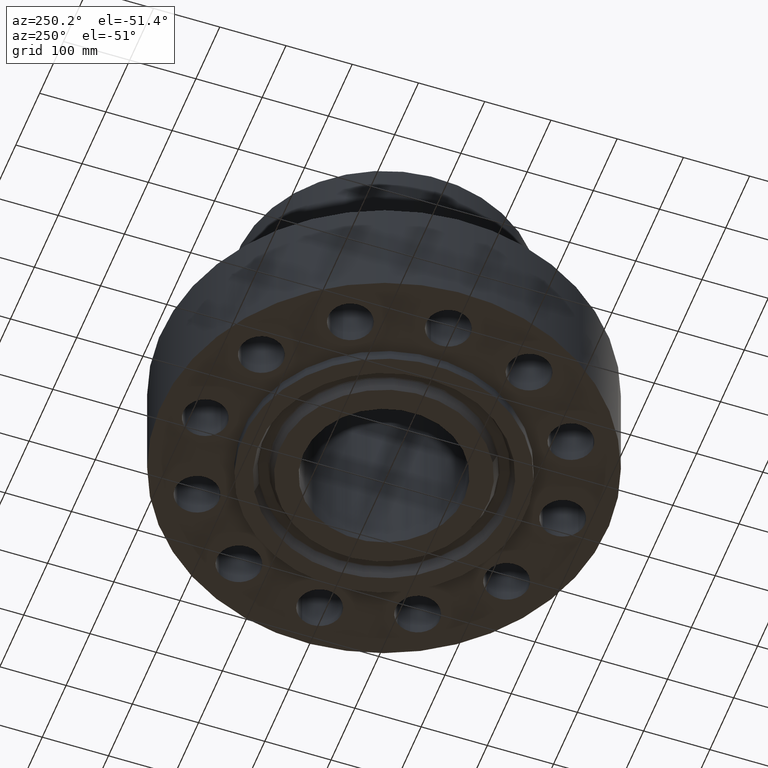
[diagram: clean part render]
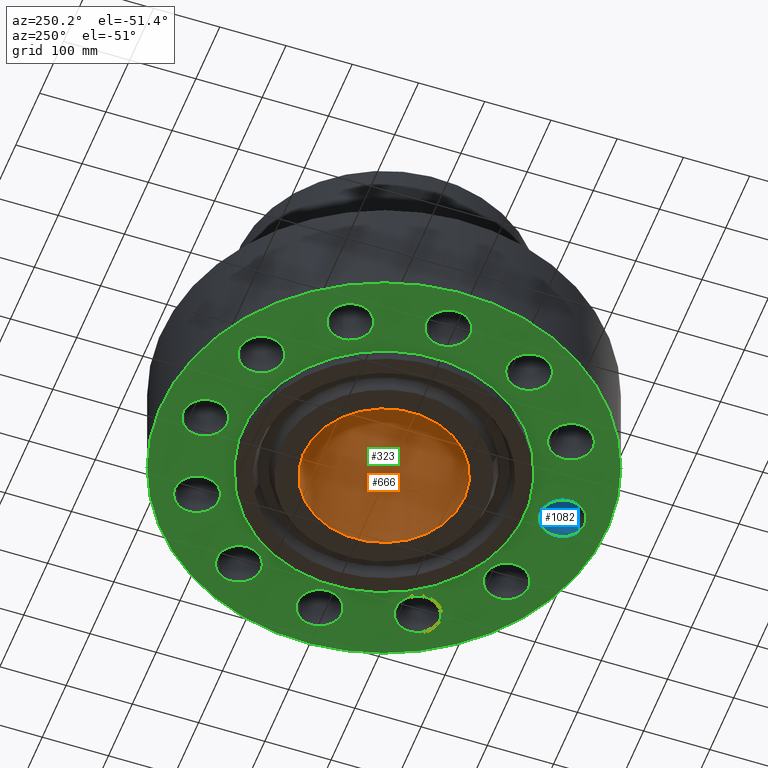
[diagram: same view with three faces highlighted in distinct colors, each labeled with its STEP entity id]
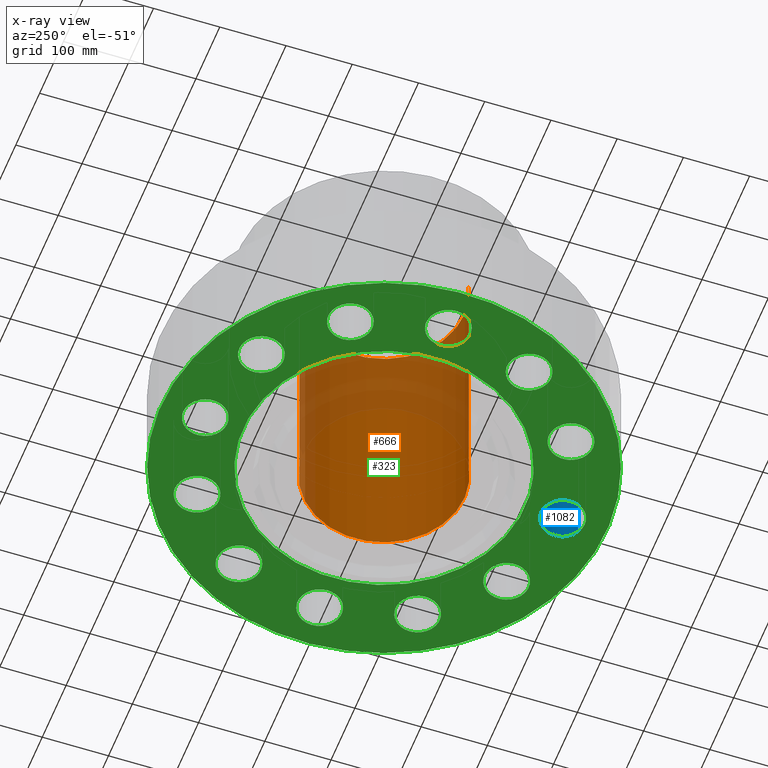
[diagram: x-ray of the same camera — body ghosted, the three highlighted faces saturated]
A machine part, auxiliary view with three faces highlighted in distinct colors.
The next image is the same camera in x-ray (body ghosted, the three faces saturated) — at least one of them is partly hidden behind the body in this view.
Their STEP definitions:

[orange] entity #666 — the highlighted cylindrical surface (partial cylindrical patch) has radius 121.412 mm, axis along (0, 0, -1).
#628=AXIS2_PLACEMENT_3D('Circle Axis2P3D',#626,#627,$) ;
#639=AXIS2_PLACEMENT_3D('Cylinder Axis2P3D',#636,#637,#638) ;
#650=AXIS2_PLACEMENT_3D('Circle Axis2P3D',#648,#649,$) ;
#621=CARTESIAN_POINT('Vertex',(-2.29165407454,-4.19484464585,15.7500000001)) ;
#623=CARTESIAN_POINT('Vertex',(2.29165407454,4.19484464585,15.7500000001)) ;
#626=CARTESIAN_POINT('Axis2P3D Location',(0.,0.,15.7500000001)) ;
#636=CARTESIAN_POINT('Axis2P3D Location',(0.,0.,7.53100000003)) ;
#641=CARTESIAN_POINT('Line Origine',(2.29165407454,4.19484464585,7.53100000003)) ;
#645=CARTESIAN_POINT('Vertex',(2.29165407454,4.19484464585,-0.688000000003)) ;
#648=CARTESIAN_POINT('Axis2P3D Location',(0.,0.,-0.688000000003)) ;
#652=CARTESIAN_POINT('Vertex',(-2.29165407454,-4.19484464585,-0.688000000003)) ;
#655=CARTESIAN_POINT('Line Origine',(-2.29165407454,-4.19484464585,7.53100000003)) ;
#627=DIRECTION('Axis2P3D Direction',(0.,0.,-0.0393700787402)) ;
#637=DIRECTION('Axis2P3D Direction',(0.,0.,-0.0393700787402)) ;
#638=DIRECTION('Axis2P3D XDirection',(-0.0188750212049,-0.0345504945626,0.)) ;
#642=DIRECTION('Vector Direction',(0.,0.,-0.0393700787402)) ;
#649=DIRECTION('Axis2P3D Direction',(0.,0.,-0.0393700787402)) ;
#656=DIRECTION('Vector Direction',(0.,0.,-0.0393700787402)) ;
#643=VECTOR('Line Direction',#642,0.0393700787402) ;
#657=VECTOR('Line Direction',#656,0.0393700787402) ;
#661=ORIENTED_EDGE('',*,*,#630,.F.) ;
#662=ORIENTED_EDGE('',*,*,#647,.T.) ;
#663=ORIENTED_EDGE('',*,*,#654,.T.) ;
#664=ORIENTED_EDGE('',*,*,#659,.F.) ;
#666=ADVANCED_FACE('PartBody',(#665),#640,.F.) ;
#629=CIRCLE('generated circle',#628,4.78000000002) ;
#651=CIRCLE('generated circle',#650,4.78000000002) ;
#640=CYLINDRICAL_SURFACE('generated cylinder',#639,4.78000000002) ;
#630=EDGE_CURVE('',#624,#622,#629,.T.) ;
#647=EDGE_CURVE('',#624,#646,#644,.T.) ;
#654=EDGE_CURVE('',#646,#653,#651,.T.) ;
#659=EDGE_CURVE('',#622,#653,#658,.T.) ;
#660=EDGE_LOOP('',(#661,#662,#663,#664)) ;
#665=FACE_OUTER_BOUND('',#660,.T.) ;
#644=LINE('Line',#641,#643) ;
#658=LINE('Line',#655,#657) ;
#622=VERTEX_POINT('',#621) ;
#624=VERTEX_POINT('',#623) ;
#646=VERTEX_POINT('',#645) ;
#653=VERTEX_POINT('',#652) ;

[blue] entity #1082 — the highlighted cylindrical surface (edge-blend (fillet) strip) has radius 33.274 mm, axis along (-0, 0, 1).
#172=AXIS2_PLACEMENT_3D('Circle Axis2P3D',#170,#171,$) ;
#1043=AXIS2_PLACEMENT_3D('Cylinder Axis2P3D',#1040,#1041,#1042) ;
#1073=AXIS2_PLACEMENT_3D('Circle Axis2P3D',#1071,#1072,$) ;
#165=CARTESIAN_POINT('Vertex',(0.628047455574,-11.7746331561,0.)) ;
#167=CARTESIAN_POINT('Vertex',(-0.628047455574,-9.47536684396,0.)) ;
#170=CARTESIAN_POINT('Axis2P3D Location',(-3.07715358006E-015,-10.625,0.)) ;
#1040=CARTESIAN_POINT('Axis2P3D Location',(-1.58733626436E-015,-10.625,0.00393700787402)) ;
#1045=CARTESIAN_POINT('Line Origine',(-0.628047455574,-9.47536684396,3.25000000001)) ;
#1049=CARTESIAN_POINT('Vertex',(-0.628047455574,-9.47536684396,6.50000000003)) ;
#1056=CARTESIAN_POINT('Vertex',(0.628047455574,-11.7746331561,6.50000000003)) ;
#1059=CARTESIAN_POINT('Line Origine',(0.628047455574,-11.7746331561,3.25000000001)) ;
#1071=CARTESIAN_POINT('Axis2P3D Location',(-1.58733626436E-015,-10.625,6.50000000003)) ;
#171=DIRECTION('Axis2P3D Direction',(0.,0.,-0.0393700787402)) ;
#1041=DIRECTION('Axis2P3D Direction',(-0.,0.,0.0393700787402)) ;
#1042=DIRECTION('Axis2P3D XDirection',(0.0188750212049,-0.0345504945626,0.)) ;
#1046=DIRECTION('Vector Direction',(0.,0.,0.0393700787402)) ;
#1060=DIRECTION('Vector Direction',(0.,0.,0.0393700787402)) ;
#1072=DIRECTION('Axis2P3D Direction',(-0.,0.,0.0393700787402)) ;
#1047=VECTOR('Line Direction',#1046,0.0393700787402) ;
#1061=VECTOR('Line Direction',#1060,0.0393700787402) ;
#1077=ORIENTED_EDGE('',*,*,#1063,.F.) ;
#1078=ORIENTED_EDGE('',*,*,#1075,.F.) ;
#1079=ORIENTED_EDGE('',*,*,#1051,.T.) ;
#1080=ORIENTED_EDGE('',*,*,#174,.T.) ;
#1082=ADVANCED_FACE('PartBody',(#1081),#1044,.F.) ;
#173=CIRCLE('generated circle',#172,1.31000000001) ;
#1074=CIRCLE('generated circle',#1073,1.31000000001) ;
#1044=CYLINDRICAL_SURFACE('generated cylinder',#1043,1.31000000001) ;
#174=EDGE_CURVE('',#168,#166,#173,.T.) ;
#1051=EDGE_CURVE('',#1050,#168,#1048,.F.) ;
#1063=EDGE_CURVE('',#1057,#166,#1062,.F.) ;
#1075=EDGE_CURVE('',#1050,#1057,#1074,.F.) ;
#1076=EDGE_LOOP('',(#1077,#1078,#1079,#1080)) ;
#1081=FACE_OUTER_BOUND('',#1076,.T.) ;
#1048=LINE('Line',#1045,#1047) ;
#1062=LINE('Line',#1059,#1061) ;
#166=VERTEX_POINT('',#165) ;
#168=VERTEX_POINT('',#167) ;
#1050=VERTEX_POINT('',#1049) ;
#1057=VERTEX_POINT('',#1056) ;

[green] entity #323 — the highlighted planar face has unit normal (0, 0, -1).
#65=AXIS2_PLACEMENT_3D('Circle Axis2P3D',#63,#64,$) ;
#78=AXIS2_PLACEMENT_3D('Plane Axis2P3D',#75,#76,#77) ;
#82=AXIS2_PLACEMENT_3D('Circle Axis2P3D',#80,#81,$) ;
#91=AXIS2_PLACEMENT_3D('Circle Axis2P3D',#89,#90,$) ;
#100=AXIS2_PLACEMENT_3D('Circle Axis2P3D',#98,#99,$) ;
#109=AXIS2_PLACEMENT_3D('Circle Axis2P3D',#107,#108,$) ;
#118=AXIS2_PLACEMENT_3D('Circle Axis2P3D',#116,#117,$) ;
#127=AXIS2_PLACEMENT_3D('Circle Axis2P3D',#125,#126,$) ;
#136=AXIS2_PLACEMENT_3D('Circle Axis2P3D',#134,#135,$) ;
#145=AXIS2_PLACEMENT_3D('Circle Axis2P3D',#143,#144,$) ;
#154=AXIS2_PLACEMENT_3D('Circle Axis2P3D',#152,#153,$) ;
#163=AXIS2_PLACEMENT_3D('Circle Axis2P3D',#161,#162,$) ;
#172=AXIS2_PLACEMENT_3D('Circle Axis2P3D',#170,#171,$) ;
#181=AXIS2_PLACEMENT_3D('Circle Axis2P3D',#179,#180,$) ;
#190=AXIS2_PLACEMENT_3D('Circle Axis2P3D',#188,#189,$) ;
#199=AXIS2_PLACEMENT_3D('Circle Axis2P3D',#197,#198,$) ;
#208=AXIS2_PLACEMENT_3D('Circle Axis2P3D',#206,#207,$) ;
#217=AXIS2_PLACEMENT_3D('Circle Axis2P3D',#215,#216,$) ;
#226=AXIS2_PLACEMENT_3D('Circle Axis2P3D',#224,#225,$) ;
#235=AXIS2_PLACEMENT_3D('Circle Axis2P3D',#233,#234,$) ;
#244=AXIS2_PLACEMENT_3D('Circle Axis2P3D',#242,#243,$) ;
#253=AXIS2_PLACEMENT_3D('Circle Axis2P3D',#251,#252,$) ;
#262=AXIS2_PLACEMENT_3D('Circle Axis2P3D',#260,#261,$) ;
#271=AXIS2_PLACEMENT_3D('Circle Axis2P3D',#269,#270,$) ;
#280=AXIS2_PLACEMENT_3D('Circle Axis2P3D',#278,#279,$) ;
#289=AXIS2_PLACEMENT_3D('Circle Axis2P3D',#287,#288,$) ;
#298=AXIS2_PLACEMENT_3D('Circle Axis2P3D',#296,#297,$) ;
#307=AXIS2_PLACEMENT_3D('Circle Axis2P3D',#305,#306,$) ;
#316=AXIS2_PLACEMENT_3D('Circle Axis2P3D',#314,#315,$) ;
#46=CARTESIAN_POINT('Vertex',(9.47536684396,-0.628047455574,2.2401153548E-016)) ;
#60=CARTESIAN_POINT('Vertex',(11.7746331561,0.628047455574,2.2401153548E-016)) ;
#63=CARTESIAN_POINT('Axis2P3D Location',(10.625,0.,0.)) ;
#75=CARTESIAN_POINT('Axis2P3D Location',(0.,6.51025591633,0.)) ;
#80=CARTESIAN_POINT('Axis2P3D Location',(0.,0.,0.)) ;
#84=CARTESIAN_POINT('Vertex',(-6.35238838653,-11.6279689451,1.1189649382E-015)) ;
#86=CARTESIAN_POINT('Vertex',(6.35238838653,11.6279689451,1.1189649382E-015)) ;
#89=CARTESIAN_POINT('Axis2P3D Location',(0.,0.,0.)) ;
#98=CARTESIAN_POINT('Axis2P3D Location',(10.625,0.,0.)) ;
#107=CARTESIAN_POINT('Axis2P3D Location',(0.,0.,0.)) ;
#111=CARTESIAN_POINT('Vertex',(4.01518888583,7.34975395586,0.)) ;
#113=CARTESIAN_POINT('Vertex',(-4.01518888583,-7.34975395586,0.)) ;
#116=CARTESIAN_POINT('Axis2P3D Location',(0.,0.,0.)) ;
#125=CARTESIAN_POINT('Axis2P3D Location',(9.20151991525,-5.31250000002,0.)) ;
#129=CARTESIAN_POINT('Vertex',(10.5111551612,-5.34341152675,0.)) ;
#131=CARTESIAN_POINT('Vertex',(7.89188466926,-5.28158847329,0.)) ;
#134=CARTESIAN_POINT('Axis2P3D Location',(9.20151991525,-5.31250000002,0.)) ;
#143=CARTESIAN_POINT('Axis2P3D Location',(5.31250000002,-9.20151991525,0.)) ;
#147=CARTESIAN_POINT('Vertex',(6.43122162937,-9.88310770566,0.)) ;
#149=CARTESIAN_POINT('Vertex',(4.19377837067,-8.51993212483,0.)) ;
#152=CARTESIAN_POINT('Axis2P3D Location',(5.31250000002,-9.20151991525,0.)) ;
#161=CARTESIAN_POINT('Axis2P3D Location',(-5.59482469102E-016,-10.625,0.)) ;
#165=CARTESIAN_POINT('Vertex',(0.628047455574,-11.7746331561,0.)) ;
#167=CARTESIAN_POINT('Vertex',(-0.628047455574,-9.47536684396,0.)) ;
#170=CARTESIAN_POINT('Axis2P3D Location',(-3.07715358006E-015,-10.625,0.)) ;
#179=CARTESIAN_POINT('Axis2P3D Location',(-5.31250000002,-9.20151991525,0.)) ;
#183=CARTESIAN_POINT('Vertex',(-5.34341152675,-10.5111551612,0.)) ;
#185=CARTESIAN_POINT('Vertex',(-5.28158847329,-7.89188466926,0.)) ;
#188=CARTESIAN_POINT('Axis2P3D Location',(-5.31250000002,-9.20151991525,0.)) ;
#197=CARTESIAN_POINT('Axis2P3D Location',(-9.20151991525,-5.31250000002,0.)) ;
#201=CARTESIAN_POINT('Vertex',(-9.88310770566,-6.43122162937,0.)) ;
#203=CARTESIAN_POINT('Vertex',(-8.51993212483,-4.19377837067,0.)) ;
#206=CARTESIAN_POINT('Axis2P3D Location',(-9.20151991525,-5.31250000002,0.)) ;
#215=CARTESIAN_POINT('Axis2P3D Location',(-10.625,-1.1189649382E-015,0.)) ;
#219=CARTESIAN_POINT('Vertex',(-11.7746331561,-0.628047455574,0.)) ;
#221=CARTESIAN_POINT('Vertex',(-9.47536684396,0.628047455574,0.)) ;
#224=CARTESIAN_POINT('Axis2P3D Location',(-10.625,-1.1189649382E-015,0.)) ;
#233=CARTESIAN_POINT('Axis2P3D Location',(-9.20151991525,5.31250000002,0.)) ;
#237=CARTESIAN_POINT('Vertex',(-10.5111551612,5.34341152675,0.)) ;
#239=CARTESIAN_POINT('Vertex',(-7.89188466926,5.28158847329,0.)) ;
#242=CARTESIAN_POINT('Axis2P3D Location',(-9.20151991525,5.31250000002,0.)) ;
#251=CARTESIAN_POINT('Axis2P3D Location',(-5.31250000002,9.20151991525,0.)) ;
#255=CARTESIAN_POINT('Vertex',(-6.43122162937,9.88310770566,0.)) ;
#257=CARTESIAN_POINT('Vertex',(-4.19377837067,8.51993212483,0.)) ;
#260=CARTESIAN_POINT('Axis2P3D Location',(-5.31250000002,9.20151991525,0.)) ;
#269=CARTESIAN_POINT('Axis2P3D Location',(-1.67844740731E-015,10.625,0.)) ;
#273=CARTESIAN_POINT('Vertex',(-0.628047455574,11.7746331561,0.)) ;
#275=CARTESIAN_POINT('Vertex',(0.628047455574,9.47536684396,0.)) ;
#278=CARTESIAN_POINT('Axis2P3D Location',(-1.53857679003E-015,10.625,0.)) ;
#287=CARTESIAN_POINT('Axis2P3D Location',(5.31250000002,9.20151991525,0.)) ;
#291=CARTESIAN_POINT('Vertex',(5.34341152675,10.5111551612,0.)) ;
#293=CARTESIAN_POINT('Vertex',(5.28158847329,7.89188466926,0.)) ;
#296=CARTESIAN_POINT('Axis2P3D Location',(5.31250000002,9.20151991525,0.)) ;
#305=CARTESIAN_POINT('Axis2P3D Location',(9.20151991525,5.31250000002,0.)) ;
#309=CARTESIAN_POINT('Vertex',(9.88310770566,6.43122162937,0.)) ;
#311=CARTESIAN_POINT('Vertex',(8.51993212483,4.19377837067,0.)) ;
#314=CARTESIAN_POINT('Axis2P3D Location',(9.20151991525,5.31250000002,0.)) ;
#64=DIRECTION('Axis2P3D Direction',(0.,-0.,0.0393700787402)) ;
#76=DIRECTION('Axis2P3D Direction',(0.,0.,-0.0393700787402)) ;
#77=DIRECTION('Axis2P3D XDirection',(0.0393700787402,0.,0.)) ;
#81=DIRECTION('Axis2P3D Direction',(0.,0.,-0.0393700787402)) ;
#90=DIRECTION('Axis2P3D Direction',(0.,0.,-0.0393700787402)) ;
#99=DIRECTION('Axis2P3D Direction',(0.,0.,-0.0393700787402)) ;
#108=DIRECTION('Axis2P3D Direction',(0.,0.,-0.0393700787402)) ;
#117=DIRECTION('Axis2P3D Direction',(0.,0.,-0.0393700787402)) ;
#126=DIRECTION('Axis2P3D Direction',(0.,0.,-0.0393700787402)) ;
#135=DIRECTION('Axis2P3D Direction',(0.,0.,-0.0393700787402)) ;
#144=DIRECTION('Axis2P3D Direction',(0.,0.,-0.0393700787402)) ;
#153=DIRECTION('Axis2P3D Direction',(0.,0.,-0.0393700787402)) ;
#162=DIRECTION('Axis2P3D Direction',(0.,0.,-0.0393700787402)) ;
#171=DIRECTION('Axis2P3D Direction',(0.,0.,-0.0393700787402)) ;
#180=DIRECTION('Axis2P3D Direction',(0.,0.,-0.0393700787402)) ;
#189=DIRECTION('Axis2P3D Direction',(0.,0.,-0.0393700787402)) ;
#198=DIRECTION('Axis2P3D Direction',(0.,0.,-0.0393700787402)) ;
#207=DIRECTION('Axis2P3D Direction',(0.,0.,-0.0393700787402)) ;
#216=DIRECTION('Axis2P3D Direction',(0.,0.,-0.0393700787402)) ;
#225=DIRECTION('Axis2P3D Direction',(0.,0.,-0.0393700787402)) ;
#234=DIRECTION('Axis2P3D Direction',(0.,0.,-0.0393700787402)) ;
#243=DIRECTION('Axis2P3D Direction',(0.,0.,-0.0393700787402)) ;
#252=DIRECTION('Axis2P3D Direction',(0.,0.,-0.0393700787402)) ;
#261=DIRECTION('Axis2P3D Direction',(0.,0.,-0.0393700787402)) ;
#270=DIRECTION('Axis2P3D Direction',(0.,0.,-0.0393700787402)) ;
#279=DIRECTION('Axis2P3D Direction',(0.,0.,-0.0393700787402)) ;
#288=DIRECTION('Axis2P3D Direction',(0.,0.,-0.0393700787402)) ;
#297=DIRECTION('Axis2P3D Direction',(0.,0.,-0.0393700787402)) ;
#306=DIRECTION('Axis2P3D Direction',(0.,0.,-0.0393700787402)) ;
#315=DIRECTION('Axis2P3D Direction',(0.,0.,-0.0393700787402)) ;
#95=ORIENTED_EDGE('',*,*,#88,.T.) ;
#96=ORIENTED_EDGE('',*,*,#93,.T.) ;
#104=ORIENTED_EDGE('',*,*,#102,.F.) ;
#105=ORIENTED_EDGE('',*,*,#67,.F.) ;
#122=ORIENTED_EDGE('',*,*,#115,.F.) ;
#123=ORIENTED_EDGE('',*,*,#120,.F.) ;
#140=ORIENTED_EDGE('',*,*,#133,.F.) ;
#141=ORIENTED_EDGE('',*,*,#138,.F.) ;
#158=ORIENTED_EDGE('',*,*,#151,.F.) ;
#159=ORIENTED_EDGE('',*,*,#156,.F.) ;
#176=ORIENTED_EDGE('',*,*,#169,.F.) ;
#177=ORIENTED_EDGE('',*,*,#174,.F.) ;
#194=ORIENTED_EDGE('',*,*,#187,.F.) ;
#195=ORIENTED_EDGE('',*,*,#192,.F.) ;
#212=ORIENTED_EDGE('',*,*,#205,.F.) ;
#213=ORIENTED_EDGE('',*,*,#210,.F.) ;
#230=ORIENTED_EDGE('',*,*,#223,.F.) ;
#231=ORIENTED_EDGE('',*,*,#228,.F.) ;
#248=ORIENTED_EDGE('',*,*,#241,.F.) ;
#249=ORIENTED_EDGE('',*,*,#246,.F.) ;
#266=ORIENTED_EDGE('',*,*,#259,.F.) ;
#267=ORIENTED_EDGE('',*,*,#264,.F.) ;
#284=ORIENTED_EDGE('',*,*,#277,.F.) ;
#285=ORIENTED_EDGE('',*,*,#282,.F.) ;
#302=ORIENTED_EDGE('',*,*,#295,.F.) ;
#303=ORIENTED_EDGE('',*,*,#300,.F.) ;
#320=ORIENTED_EDGE('',*,*,#313,.F.) ;
#321=ORIENTED_EDGE('',*,*,#318,.F.) ;
#106=FACE_BOUND('',#103,.T.) ;
#124=FACE_BOUND('',#121,.T.) ;
#142=FACE_BOUND('',#139,.T.) ;
#160=FACE_BOUND('',#157,.T.) ;
#178=FACE_BOUND('',#175,.T.) ;
#196=FACE_BOUND('',#193,.T.) ;
#214=FACE_BOUND('',#211,.T.) ;
#232=FACE_BOUND('',#229,.T.) ;
#250=FACE_BOUND('',#247,.T.) ;
#268=FACE_BOUND('',#265,.T.) ;
#286=FACE_BOUND('',#283,.T.) ;
#304=FACE_BOUND('',#301,.T.) ;
#322=FACE_BOUND('',#319,.T.) ;
#323=ADVANCED_FACE('PartBody',(#97,#106,#124,#142,#160,#178,#196,#214,#232,#250,#268,#286,#304,#322),#79,.T.) ;
#66=CIRCLE('generated circle',#65,1.31000000001) ;
#83=CIRCLE('generated circle',#82,13.2500000001) ;
#92=CIRCLE('generated circle',#91,13.2500000001) ;
#101=CIRCLE('generated circle',#100,1.31000000001) ;
#110=CIRCLE('generated circle',#109,8.37500000003) ;
#119=CIRCLE('generated circle',#118,8.37500000003) ;
#128=CIRCLE('generated circle',#127,1.31000000001) ;
#137=CIRCLE('generated circle',#136,1.31000000001) ;
#146=CIRCLE('generated circle',#145,1.31000000001) ;
#155=CIRCLE('generated circle',#154,1.31000000001) ;
#164=CIRCLE('generated circle',#163,1.31000000001) ;
#173=CIRCLE('generated circle',#172,1.31000000001) ;
#182=CIRCLE('generated circle',#181,1.31000000001) ;
#191=CIRCLE('generated circle',#190,1.31000000001) ;
#200=CIRCLE('generated circle',#199,1.31000000001) ;
#209=CIRCLE('generated circle',#208,1.31000000001) ;
#218=CIRCLE('generated circle',#217,1.31000000001) ;
#227=CIRCLE('generated circle',#226,1.31000000001) ;
#236=CIRCLE('generated circle',#235,1.31000000001) ;
#245=CIRCLE('generated circle',#244,1.31000000001) ;
#254=CIRCLE('generated circle',#253,1.31000000001) ;
#263=CIRCLE('generated circle',#262,1.31000000001) ;
#272=CIRCLE('generated circle',#271,1.31000000001) ;
#281=CIRCLE('generated circle',#280,1.31000000001) ;
#290=CIRCLE('generated circle',#289,1.31000000001) ;
#299=CIRCLE('generated circle',#298,1.31000000001) ;
#308=CIRCLE('generated circle',#307,1.31000000001) ;
#317=CIRCLE('generated circle',#316,1.31000000001) ;
#67=EDGE_CURVE('',#61,#47,#66,.F.) ;
#88=EDGE_CURVE('',#85,#87,#83,.T.) ;
#93=EDGE_CURVE('',#87,#85,#92,.T.) ;
#102=EDGE_CURVE('',#47,#61,#101,.T.) ;
#115=EDGE_CURVE('',#112,#114,#110,.T.) ;
#120=EDGE_CURVE('',#114,#112,#119,.T.) ;
#133=EDGE_CURVE('',#130,#132,#128,.T.) ;
#138=EDGE_CURVE('',#132,#130,#137,.T.) ;
#151=EDGE_CURVE('',#148,#150,#146,.T.) ;
#156=EDGE_CURVE('',#150,#148,#155,.T.) ;
#169=EDGE_CURVE('',#166,#168,#164,.T.) ;
#174=EDGE_CURVE('',#168,#166,#173,.T.) ;
#187=EDGE_CURVE('',#184,#186,#182,.T.) ;
#192=EDGE_CURVE('',#186,#184,#191,.T.) ;
#205=EDGE_CURVE('',#202,#204,#200,.T.) ;
#210=EDGE_CURVE('',#204,#202,#209,.T.) ;
#223=EDGE_CURVE('',#220,#222,#218,.T.) ;
#228=EDGE_CURVE('',#222,#220,#227,.T.) ;
#241=EDGE_CURVE('',#238,#240,#236,.T.) ;
#246=EDGE_CURVE('',#240,#238,#245,.T.) ;
#259=EDGE_CURVE('',#256,#258,#254,.T.) ;
#264=EDGE_CURVE('',#258,#256,#263,.T.) ;
#277=EDGE_CURVE('',#274,#276,#272,.T.) ;
#282=EDGE_CURVE('',#276,#274,#281,.T.) ;
#295=EDGE_CURVE('',#292,#294,#290,.T.) ;
#300=EDGE_CURVE('',#294,#292,#299,.T.) ;
#313=EDGE_CURVE('',#310,#312,#308,.T.) ;
#318=EDGE_CURVE('',#312,#310,#317,.T.) ;
#94=EDGE_LOOP('',(#95,#96)) ;
#103=EDGE_LOOP('',(#104,#105)) ;
#121=EDGE_LOOP('',(#122,#123)) ;
#139=EDGE_LOOP('',(#140,#141)) ;
#157=EDGE_LOOP('',(#158,#159)) ;
#175=EDGE_LOOP('',(#176,#177)) ;
#193=EDGE_LOOP('',(#194,#195)) ;
#211=EDGE_LOOP('',(#212,#213)) ;
#229=EDGE_LOOP('',(#230,#231)) ;
#247=EDGE_LOOP('',(#248,#249)) ;
#265=EDGE_LOOP('',(#266,#267)) ;
#283=EDGE_LOOP('',(#284,#285)) ;
#301=EDGE_LOOP('',(#302,#303)) ;
#319=EDGE_LOOP('',(#320,#321)) ;
#97=FACE_OUTER_BOUND('',#94,.T.) ;
#79=PLANE('',#78) ;
#47=VERTEX_POINT('',#46) ;
#61=VERTEX_POINT('',#60) ;
#85=VERTEX_POINT('',#84) ;
#87=VERTEX_POINT('',#86) ;
#112=VERTEX_POINT('',#111) ;
#114=VERTEX_POINT('',#113) ;
#130=VERTEX_POINT('',#129) ;
#132=VERTEX_POINT('',#131) ;
#148=VERTEX_POINT('',#147) ;
#150=VERTEX_POINT('',#149) ;
#166=VERTEX_POINT('',#165) ;
#168=VERTEX_POINT('',#167) ;
#184=VERTEX_POINT('',#183) ;
#186=VERTEX_POINT('',#185) ;
#202=VERTEX_POINT('',#201) ;
#204=VERTEX_POINT('',#203) ;
#220=VERTEX_POINT('',#219) ;
#222=VERTEX_POINT('',#221) ;
#238=VERTEX_POINT('',#237) ;
#240=VERTEX_POINT('',#239) ;
#256=VERTEX_POINT('',#255) ;
#258=VERTEX_POINT('',#257) ;
#274=VERTEX_POINT('',#273) ;
#276=VERTEX_POINT('',#275) ;
#292=VERTEX_POINT('',#291) ;
#294=VERTEX_POINT('',#293) ;
#310=VERTEX_POINT('',#309) ;
#312=VERTEX_POINT('',#311) ;